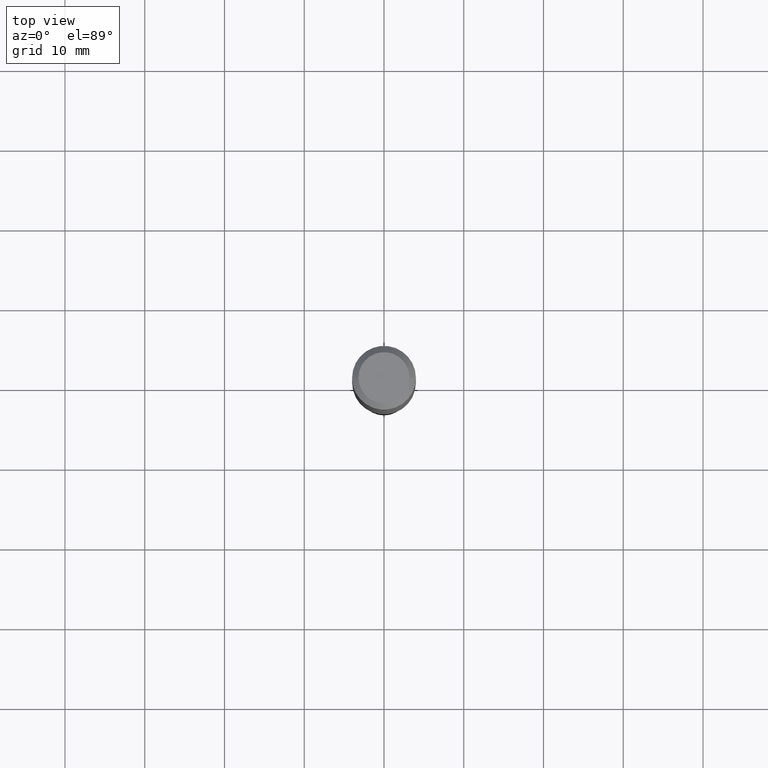
[diagram: clean part render]
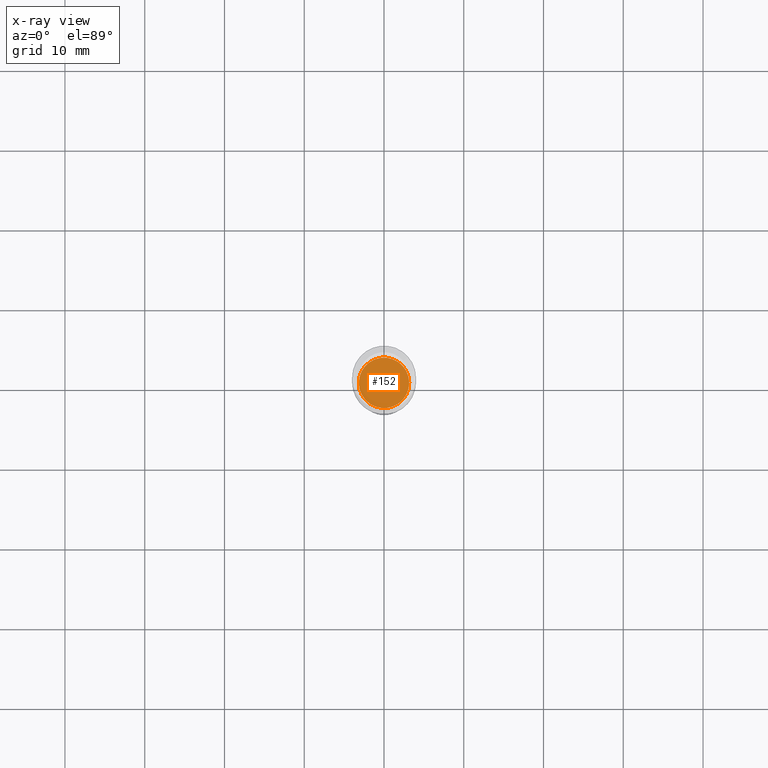
[diagram: x-ray — body ghosted, one internal face saturated and labeled with its STEP entity id]
A machine part, top view, then the same camera in x-ray: the body is ghosted and one INTERNAL B-rep face — a face not visible from any outside direction — is saturated and labeled: STEP entity #152.
In plain terms, the highlighted planar face has unit normal (-0, 0, 1).
Its self-contained STEP definition (entity closure, byte-faithful):
#25 = DIRECTION ( 'NONE',  ( -2.445468806185136597E-29, 3.491481338843145583E-15, 1.000000000000000000 ) ) ;
#45 = AXIS2_PLACEMENT_3D ( 'NONE', #399, #95, #241 ) ;
#89 = EDGE_LOOP ( 'NONE', ( #391, #217 ) ) ;
#95 = DIRECTION ( 'NONE',  ( -2.438088387897960049E-29, 3.491481338843145188E-15, 1.000000000000000000 ) ) ;
#115 = CARTESIAN_POINT ( 'NONE',  ( -0.1244999999999999996, -4.337377742249447816E-15, -1.496400000000000174 ) ) ;
#152 = ADVANCED_FACE ( 'NONE', ( #248 ), #438, .F. ) ;
#217 = ORIENTED_EDGE ( 'NONE', *, *, #350, .F. ) ;
#241 = DIRECTION ( 'NONE',  ( 1.000000000000000000, -6.982962677686265922E-15, 4.876176775795935793E-29 ) ) ;
#244 = CIRCLE ( 'NONE', #278, 0.1244999999999999996 ) ;
#248 = FACE_OUTER_BOUND ( 'NONE', #89, .T. ) ;
#256 = CARTESIAN_POINT ( 'NONE',  ( 3.659399521575438742E-29, -5.224652675444883351E-15, -1.496400000000000174 ) ) ;
#263 = DIRECTION ( 'NONE',  ( 1.000000000000000000, -6.982962677686266711E-15, 0.000000000000000000 ) ) ;
#278 = AXIS2_PLACEMENT_3D ( 'NONE', #256, #409, #263 ) ;
#298 = VERTEX_POINT ( 'NONE', #445 ) ;
#330 = CIRCLE ( 'NONE', #458, 0.1244999999999999996 ) ;
#334 = VERTEX_POINT ( 'NONE', #115 ) ;
#350 = EDGE_CURVE ( 'NONE', #334, #298, #330, .T. ) ;
#391 = ORIENTED_EDGE ( 'NONE', *, *, #414, .F. ) ;
#399 = CARTESIAN_POINT ( 'NONE',  ( 3.659399521575438742E-29, -5.224652675444883351E-15, -1.496400000000000174 ) ) ;
#409 = DIRECTION ( 'NONE',  ( -2.445468806185136597E-29, 3.491481338843145583E-15, 1.000000000000000000 ) ) ;
#414 = EDGE_CURVE ( 'NONE', #298, #334, #244, .T. ) ;
#438 = PLANE ( 'NONE',  #45 ) ;
#445 = CARTESIAN_POINT ( 'NONE',  ( 0.1244999999999999996, -6.094031528816823683E-15, -1.496400000000000174 ) ) ;
#458 = AXIS2_PLACEMENT_3D ( 'NONE', #486, #25, #479 ) ;
#479 = DIRECTION ( 'NONE',  ( 1.000000000000000000, -6.982962677686266711E-15, 0.000000000000000000 ) ) ;
#486 = CARTESIAN_POINT ( 'NONE',  ( 3.659399521575438742E-29, -5.224652675444883351E-15, -1.496400000000000174 ) ) ;